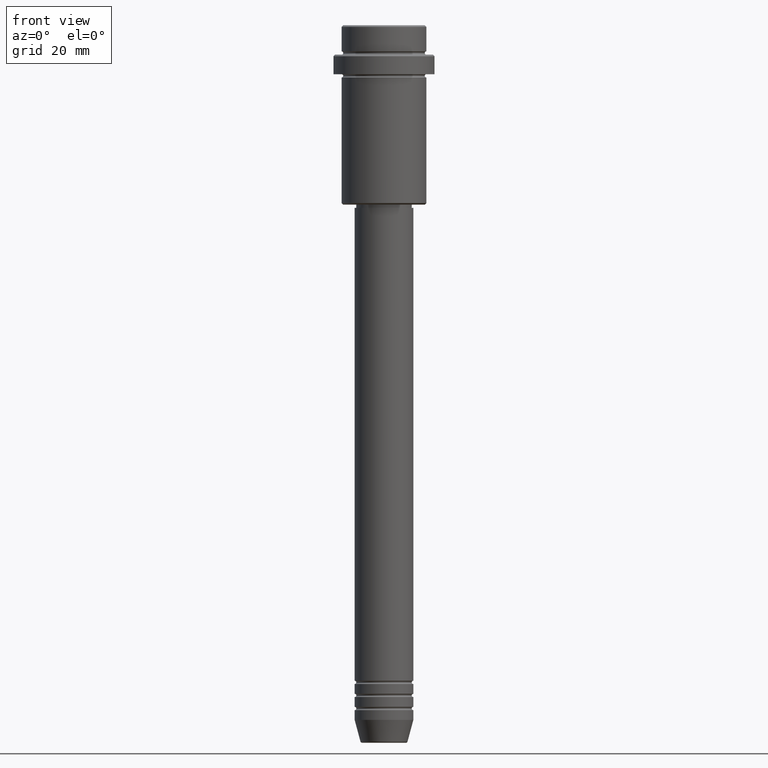
[diagram: clean part render]
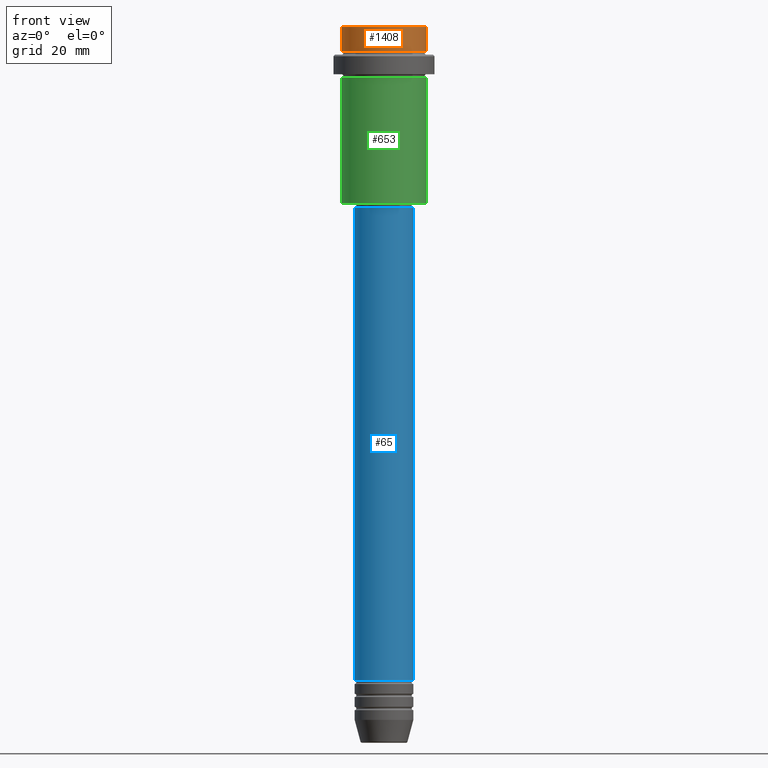
[diagram: same view with three faces highlighted in distinct colors, each labeled with its STEP entity id]
A machine part, front view with three faces highlighted in distinct colors.
Their STEP definitions:

[orange] entity #1408 — the highlighted cylindrical surface (partial cylindrical patch) has radius 13 mm, axis along (-0, -0, 1).
#25 = VECTOR ( 'NONE', #68, 1000.000000000000000 ) ;
#68 = DIRECTION ( 'NONE',  ( -0.000000000000000000, -0.000000000000000000, 1.000000000000000000 ) ) ;
#88 = ORIENTED_EDGE ( 'NONE', *, *, #292, .T. ) ;
#104 = VERTEX_POINT ( 'NONE', #1042 ) ;
#109 = DIRECTION ( 'NONE',  ( 0.000000000000000000, 0.000000000000000000, -1.000000000000000000 ) ) ;
#197 = DIRECTION ( 'NONE',  ( 1.000000000000000000, 0.000000000000000000, 0.000000000000000000 ) ) ;
#201 = CARTESIAN_POINT ( 'NONE',  ( 12.99999999999999822, 0.000000000000000000, -0.4999999999999483746 ) ) ;
#292 = EDGE_CURVE ( 'NONE', #1388, #104, #864, .T. ) ;
#301 = ORIENTED_EDGE ( 'NONE', *, *, #1355, .T. ) ;
#304 = CARTESIAN_POINT ( 'NONE',  ( 12.99999999999999822, 0.000000000000000000, 0.000000000000000000 ) ) ;
#323 = VERTEX_POINT ( 'NONE', #1320 ) ;
#350 = EDGE_LOOP ( 'NONE', ( #796, #480, #301, #88 ) ) ;
#411 = CARTESIAN_POINT ( 'NONE',  ( 0.000000000000000000, 0.000000000000000000, 0.000000000000000000 ) ) ;
#426 = DIRECTION ( 'NONE',  ( -0.000000000000000000, -0.000000000000000000, 1.000000000000000000 ) ) ;
#480 = ORIENTED_EDGE ( 'NONE', *, *, #502, .T. ) ;
#502 = EDGE_CURVE ( 'NONE', #1044, #323, #594, .T. ) ;
#538 = FACE_OUTER_BOUND ( 'NONE', #350, .T. ) ;
#566 = AXIS2_PLACEMENT_3D ( 'NONE', #882, #109, #197 ) ;
#594 = CIRCLE ( 'NONE', #711, 12.99999999999999822 ) ;
#711 = AXIS2_PLACEMENT_3D ( 'NONE', #924, #811, #1174 ) ;
#756 = LINE ( 'NONE', #957, #1295 ) ;
#796 = ORIENTED_EDGE ( 'NONE', *, *, #1031, .F. ) ;
#811 = DIRECTION ( 'NONE',  ( -0.000000000000000000, -0.000000000000000000, 1.000000000000000000 ) ) ;
#850 = DIRECTION ( 'NONE',  ( 1.000000000000000000, 0.000000000000000000, 0.000000000000000000 ) ) ;
#864 = CIRCLE ( 'NONE', #566, 12.99999999999999822 ) ;
#882 = CARTESIAN_POINT ( 'NONE',  ( 0.000000000000000000, 0.000000000000000000, -0.4999999999999483746 ) ) ;
#924 = CARTESIAN_POINT ( 'NONE',  ( 0.000000000000000000, 0.000000000000000000, -7.999999999999998224 ) ) ;
#957 = CARTESIAN_POINT ( 'NONE',  ( -12.99999999999999822, 1.592040838891558898E-15, 0.000000000000000000 ) ) ;
#977 = CYLINDRICAL_SURFACE ( 'NONE', #1181, 12.99999999999999822 ) ;
#1031 = EDGE_CURVE ( 'NONE', #1044, #104, #756, .T. ) ;
#1042 = CARTESIAN_POINT ( 'NONE',  ( -12.99999999999999822, 1.592040838891558898E-15, -0.4999999999999483746 ) ) ;
#1044 = VERTEX_POINT ( 'NONE', #1280 ) ;
#1174 = DIRECTION ( 'NONE',  ( 1.000000000000000000, 0.000000000000000000, 0.000000000000000000 ) ) ;
#1178 = DIRECTION ( 'NONE',  ( -0.000000000000000000, -0.000000000000000000, 1.000000000000000000 ) ) ;
#1181 = AXIS2_PLACEMENT_3D ( 'NONE', #411, #1178, #850 ) ;
#1199 = LINE ( 'NONE', #304, #25 ) ;
#1280 = CARTESIAN_POINT ( 'NONE',  ( -12.99999999999999822, 1.592040838891558898E-15, -7.999999999999998224 ) ) ;
#1295 = VECTOR ( 'NONE', #426, 1000.000000000000000 ) ;
#1320 = CARTESIAN_POINT ( 'NONE',  ( 12.99999999999999822, 0.000000000000000000, -7.999999999999998224 ) ) ;
#1355 = EDGE_CURVE ( 'NONE', #323, #1388, #1199, .T. ) ;
#1388 = VERTEX_POINT ( 'NONE', #201 ) ;
#1408 = ADVANCED_FACE ( 'NONE', ( #538 ), #977, .T. ) ;

[blue] entity #65 — the highlighted cylindrical surface (edge-blend (fillet) strip) has radius 9 mm, axis along (-0, -0, 1).
#65 = ADVANCED_FACE ( 'NONE', ( #1156 ), #1030, .T. ) ;
#66 = CARTESIAN_POINT ( 'NONE',  ( -9.000000000000000000, 1.102182119232617714E-15, -200.9999999999999147 ) ) ;
#143 = CARTESIAN_POINT ( 'NONE',  ( 9.000000000000000000, 0.000000000000000000, -200.9999999999999147 ) ) ;
#211 = AXIS2_PLACEMENT_3D ( 'NONE', #371, #704, #270 ) ;
#229 = CARTESIAN_POINT ( 'NONE',  ( 0.000000000000000000, 0.000000000000000000, -56.00000000000002132 ) ) ;
#235 = EDGE_LOOP ( 'NONE', ( #248, #1293, #563, #1336 ) ) ;
#245 = VECTOR ( 'NONE', #493, 1000.000000000000000 ) ;
#248 = ORIENTED_EDGE ( 'NONE', *, *, #830, .F. ) ;
#263 = AXIS2_PLACEMENT_3D ( 'NONE', #1028, #475, #1275 ) ;
#270 = DIRECTION ( 'NONE',  ( 1.000000000000000000, 0.000000000000000000, 0.000000000000000000 ) ) ;
#355 = DIRECTION ( 'NONE',  ( -0.000000000000000000, -0.000000000000000000, 1.000000000000000000 ) ) ;
#371 = CARTESIAN_POINT ( 'NONE',  ( 0.000000000000000000, 0.000000000000000000, 0.000000000000000000 ) ) ;
#407 = AXIS2_PLACEMENT_3D ( 'NONE', #229, #1330, #902 ) ;
#457 = LINE ( 'NONE', #1340, #825 ) ;
#460 = EDGE_CURVE ( 'NONE', #1104, #904, #1347, .T. ) ;
#475 = DIRECTION ( 'NONE',  ( -0.000000000000000000, -0.000000000000000000, 1.000000000000000000 ) ) ;
#493 = DIRECTION ( 'NONE',  ( -0.000000000000000000, -0.000000000000000000, 1.000000000000000000 ) ) ;
#547 = CARTESIAN_POINT ( 'NONE',  ( 9.000000000000001776, 0.000000000000000000, -56.00000000000002132 ) ) ;
#563 = ORIENTED_EDGE ( 'NONE', *, *, #860, .T. ) ;
#704 = DIRECTION ( 'NONE',  ( -0.000000000000000000, -0.000000000000000000, 1.000000000000000000 ) ) ;
#742 = CIRCLE ( 'NONE', #407, 9.000000000000001776 ) ;
#825 = VECTOR ( 'NONE', #355, 1000.000000000000000 ) ;
#830 = EDGE_CURVE ( 'NONE', #1104, #1112, #457, .T. ) ;
#860 = EDGE_CURVE ( 'NONE', #904, #1217, #933, .T. ) ;
#902 = DIRECTION ( 'NONE',  ( 1.000000000000000000, 0.000000000000000000, 0.000000000000000000 ) ) ;
#904 = VERTEX_POINT ( 'NONE', #143 ) ;
#933 = LINE ( 'NONE', #1045, #245 ) ;
#1028 = CARTESIAN_POINT ( 'NONE',  ( 0.000000000000000000, 0.000000000000000000, -200.9999999999999147 ) ) ;
#1030 = CYLINDRICAL_SURFACE ( 'NONE', #211, 9.000000000000001776 ) ;
#1045 = CARTESIAN_POINT ( 'NONE',  ( 9.000000000000001776, 0.000000000000000000, 0.000000000000000000 ) ) ;
#1104 = VERTEX_POINT ( 'NONE', #66 ) ;
#1112 = VERTEX_POINT ( 'NONE', #1185 ) ;
#1156 = FACE_OUTER_BOUND ( 'NONE', #235, .T. ) ;
#1182 = EDGE_CURVE ( 'NONE', #1112, #1217, #742, .T. ) ;
#1185 = CARTESIAN_POINT ( 'NONE',  ( -9.000000000000001776, 1.102182119232617911E-15, -56.00000000000002132 ) ) ;
#1217 = VERTEX_POINT ( 'NONE', #547 ) ;
#1275 = DIRECTION ( 'NONE',  ( 1.000000000000000000, 0.000000000000000000, 0.000000000000000000 ) ) ;
#1293 = ORIENTED_EDGE ( 'NONE', *, *, #460, .T. ) ;
#1330 = DIRECTION ( 'NONE',  ( -0.000000000000000000, -0.000000000000000000, 1.000000000000000000 ) ) ;
#1336 = ORIENTED_EDGE ( 'NONE', *, *, #1182, .F. ) ;
#1340 = CARTESIAN_POINT ( 'NONE',  ( -9.000000000000001776, 1.102182119232617911E-15, 0.000000000000000000 ) ) ;
#1347 = CIRCLE ( 'NONE', #263, 9.000000000000000000 ) ;

[green] entity #653 — the highlighted cylindrical surface (partial cylindrical patch) has radius 13 mm, axis along (-0, -0, 1).
#44 = CARTESIAN_POINT ( 'NONE',  ( -13.00000000000000000, 1.592040838891559095E-15, -54.50000000000002132 ) ) ;
#69 = CARTESIAN_POINT ( 'NONE',  ( -13.00000000000000000, 1.592040838891559095E-15, -16.00000000000000000 ) ) ;
#83 = FACE_OUTER_BOUND ( 'NONE', #718, .T. ) ;
#133 = DIRECTION ( 'NONE',  ( -0.000000000000000000, -0.000000000000000000, 1.000000000000000000 ) ) ;
#145 = VECTOR ( 'NONE', #133, 1000.000000000000000 ) ;
#205 = CARTESIAN_POINT ( 'NONE',  ( 0.000000000000000000, 0.000000000000000000, -54.50000000000002132 ) ) ;
#268 = DIRECTION ( 'NONE',  ( 1.000000000000000000, 0.000000000000000000, 0.000000000000000000 ) ) ;
#309 = VERTEX_POINT ( 'NONE', #669 ) ;
#328 = VERTEX_POINT ( 'NONE', #461 ) ;
#353 = EDGE_CURVE ( 'NONE', #498, #309, #1299, .T. ) ;
#429 = CYLINDRICAL_SURFACE ( 'NONE', #1131, 13.00000000000000000 ) ;
#435 = EDGE_CURVE ( 'NONE', #498, #609, #708, .T. ) ;
#461 = CARTESIAN_POINT ( 'NONE',  ( 13.00000000000000000, 0.000000000000000000, -16.00000000000000000 ) ) ;
#498 = VERTEX_POINT ( 'NONE', #44 ) ;
#520 = DIRECTION ( 'NONE',  ( -0.000000000000000000, -0.000000000000000000, 1.000000000000000000 ) ) ;
#550 = DIRECTION ( 'NONE',  ( 1.000000000000000000, 0.000000000000000000, 0.000000000000000000 ) ) ;
#555 = ORIENTED_EDGE ( 'NONE', *, *, #844, .F. ) ;
#609 = VERTEX_POINT ( 'NONE', #69 ) ;
#652 = EDGE_CURVE ( 'NONE', #309, #328, #1412, .T. ) ;
#653 = ADVANCED_FACE ( 'NONE', ( #83 ), #429, .T. ) ;
#659 = ORIENTED_EDGE ( 'NONE', *, *, #353, .T. ) ;
#660 = DIRECTION ( 'NONE',  ( -0.000000000000000000, -0.000000000000000000, 1.000000000000000000 ) ) ;
#669 = CARTESIAN_POINT ( 'NONE',  ( 13.00000000000000000, 0.000000000000000000, -54.50000000000002132 ) ) ;
#686 = AXIS2_PLACEMENT_3D ( 'NONE', #205, #753, #899 ) ;
#694 = CARTESIAN_POINT ( 'NONE',  ( -13.00000000000000000, 1.592040838891559095E-15, 0.000000000000000000 ) ) ;
#708 = LINE ( 'NONE', #694, #145 ) ;
#718 = EDGE_LOOP ( 'NONE', ( #848, #659, #996, #555 ) ) ;
#753 = DIRECTION ( 'NONE',  ( -0.000000000000000000, -0.000000000000000000, 1.000000000000000000 ) ) ;
#754 = AXIS2_PLACEMENT_3D ( 'NONE', #1268, #829, #268 ) ;
#829 = DIRECTION ( 'NONE',  ( -0.000000000000000000, -0.000000000000000000, 1.000000000000000000 ) ) ;
#844 = EDGE_CURVE ( 'NONE', #609, #328, #1305, .T. ) ;
#848 = ORIENTED_EDGE ( 'NONE', *, *, #435, .F. ) ;
#866 = VECTOR ( 'NONE', #520, 1000.000000000000000 ) ;
#899 = DIRECTION ( 'NONE',  ( -1.000000000000000000, 0.000000000000000000, 0.000000000000000000 ) ) ;
#971 = CARTESIAN_POINT ( 'NONE',  ( 0.000000000000000000, 0.000000000000000000, 0.000000000000000000 ) ) ;
#996 = ORIENTED_EDGE ( 'NONE', *, *, #652, .T. ) ;
#1131 = AXIS2_PLACEMENT_3D ( 'NONE', #971, #660, #550 ) ;
#1268 = CARTESIAN_POINT ( 'NONE',  ( 0.000000000000000000, 0.000000000000000000, -16.00000000000000000 ) ) ;
#1283 = CARTESIAN_POINT ( 'NONE',  ( 13.00000000000000000, 0.000000000000000000, 0.000000000000000000 ) ) ;
#1299 = CIRCLE ( 'NONE', #686, 13.00000000000000000 ) ;
#1305 = CIRCLE ( 'NONE', #754, 13.00000000000000000 ) ;
#1412 = LINE ( 'NONE', #1283, #866 ) ;